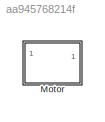
MODEL slx_aa945768214f
KIND library
CONFIG SolverName = VariableStepAuto
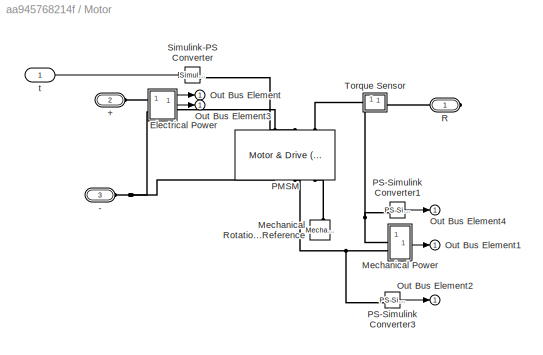
BLOCK [SubSystem] Motor
BLOCK [PMIOPort] Motor/+
  Port = 2
  Side = Left
BLOCK [PMIOPort] Motor/-
  Port = 3
  Side = Left
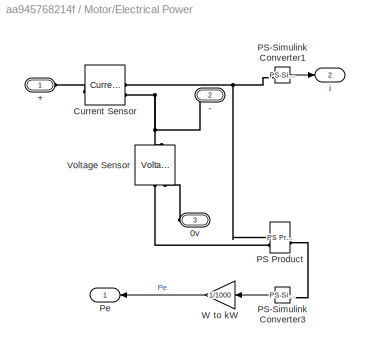
BLOCK [SubSystem] Motor/Electrical Power
BLOCK [Gain] Motor/Electrical Power/ W to kW 
  Gain = 1/1000
BLOCK [PMIOPort] Motor/Electrical Power/+
  Side = Left
BLOCK [PMIOPort] Motor/Electrical Power/-
  Port = 2
  Side = Right
BLOCK [PMIOPort] Motor/Electrical Power/0v
  Port = 3
  Side = Left
BLOCK [Reference] Motor/Electrical Power/Current Sensor  REF=fl_lib/Electrical/Electrical Sensors/Current Sensor
  SourceBlock = fl_lib/Electrical/Electrical Sensors/Current Sensor
  SourceType = Current Sensor
BLOCK [Reference] Motor/Electrical Power/PS Product  REF=fl_lib/Physical Signals/Functions/PS Product
  SourceBlock = fl_lib/Physical Signals/Functions/PS Product
  SourceType = PS Product
BLOCK [Reference] Motor/Electrical Power/PS-Simulink Converter1  REF=nesl_utility/PS-Simulink
Converter
  NameLocation = top
  SourceBlock = nesl_utility/PS-Simulink\nConverter
  SourceType = PS-Simulink\nConverter
BLOCK [Reference] Motor/Electrical Power/PS-Simulink Converter3  REF=nesl_utility/PS-Simulink
Converter
  NameLocation = top
  SourceBlock = nesl_utility/PS-Simulink\nConverter
  SourceType = PS-Simulink\nConverter
BLOCK [Outport] Motor/Electrical Power/Pe
BLOCK [Reference] Motor/Electrical Power/Voltage Sensor  REF=fl_lib/Electrical/Electrical Sensors/Voltage Sensor
  NameLocation = right
  SourceBlock = fl_lib/Electrical/Electrical Sensors/Voltage Sensor
  SourceType = Voltage Sensor
BLOCK [Outport] Motor/Electrical Power/i
  Port = 2
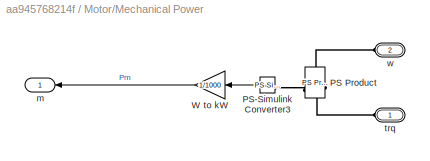
BLOCK [SubSystem] Motor/Mechanical Power
BLOCK [Gain] Motor/Mechanical Power/ W to kW 
  Gain = 1/1000
BLOCK [Reference] Motor/Mechanical Power/PS Product  REF=fl_lib/Physical Signals/Functions/PS Product
  SourceBlock = fl_lib/Physical Signals/Functions/PS Product
  SourceType = PS Product
BLOCK [Reference] Motor/Mechanical Power/PS-Simulink Converter3  REF=nesl_utility/PS-Simulink
Converter
  NameLocation = top
  SourceBlock = nesl_utility/PS-Simulink\nConverter
  SourceType = PS-Simulink\nConverter
BLOCK [Outport] Motor/Mechanical Power/m
  NameLocation = top
BLOCK [PMIOPort] Motor/Mechanical Power/trq
  Side = Left
BLOCK [PMIOPort] Motor/Mechanical Power/w
  Port = 2
  Side = Left
BLOCK [Reference] Motor/Mechanical Rotational Reference  REF=fl_lib/Mechanical/Rotational Elements/Mechanical
Rotational Reference
  NameLocation = right
  SourceBlock = fl_lib/Mechanical/Rotational Elements/Mechanical\nRotational Reference
  SourceType = Mechanical\nRotational Reference
BLOCK [Outport] Motor/Out Bus Element
BLOCK [Outport] Motor/Out Bus Element1
BLOCK [Outport] Motor/Out Bus Element2
BLOCK [Outport] Motor/Out Bus Element3
BLOCK [Outport] Motor/Out Bus Element4
BLOCK [Reference] Motor/PMSM  REF=ee_lib/Electromechanical/Motor & Drive
(System Level)
  NameLocation = left
  SourceBlock = ee_lib/Electromechanical/Motor & Drive\n(System Level)
  SourceType = Motor & Drive\n(System Level)
BLOCK [Reference] Motor/PS-Simulink Converter1  REF=nesl_utility/PS-Simulink
Converter
  NameLocation = top
  SourceBlock = nesl_utility/PS-Simulink\nConverter
  SourceType = PS-Simulink\nConverter
BLOCK [Reference] Motor/PS-Simulink Converter3  REF=nesl_utility/PS-Simulink
Converter
  NameLocation = top
  SourceBlock = nesl_utility/PS-Simulink\nConverter
  SourceType = PS-Simulink\nConverter
BLOCK [PMIOPort] Motor/R
  Side = Right
BLOCK [Reference] Motor/Simulink-PS Converter  REF=nesl_utility/Simulink-PS
Converter
  SourceBlock = nesl_utility/Simulink-PS\nConverter
  SourceType = Simulink-PS\nConverter
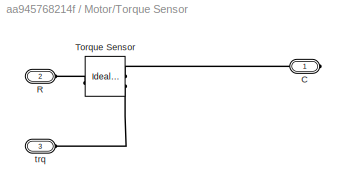
BLOCK [SubSystem] Motor/Torque Sensor
BLOCK [PMIOPort] Motor/Torque Sensor/C
  Side = Right
BLOCK [PMIOPort] Motor/Torque Sensor/R
  Port = 2
  Side = Left
BLOCK [Reference] Motor/Torque Sensor/Torque Sensor  REF=fl_lib/Mechanical/Mechanical Sensors/Ideal Torque Sensor
  SourceBlock = fl_lib/Mechanical/Mechanical Sensors/Ideal Torque Sensor
  SourceType = Ideal Torque Sensor
BLOCK [PMIOPort] Motor/Torque Sensor/trq
  Port = 3
  Side = Left
BLOCK [Inport] Motor/t
LINE Motor/Electrical Power/ W to kW :1 -> Motor/Electrical Power/Pe:1
LINE Motor/Electrical Power/PS-Simulink Converter1:1 -> Motor/Electrical Power/i:1
LINE Motor/Electrical Power/PS-Simulink Converter3:1 -> Motor/Electrical Power/ W to kW :1
LINE Motor/Electrical Power:1 -> Motor/Out Bus Element:1
LINE Motor/Electrical Power:2 -> Motor/Out Bus Element3:1
LINE Motor/Mechanical Power/ W to kW :1 -> Motor/Mechanical Power/m:1
LINE Motor/Mechanical Power/PS-Simulink Converter3:1 -> Motor/Mechanical Power/ W to kW :1
LINE Motor/Mechanical Power:1 -> Motor/Out Bus Element1:1
LINE Motor/PS-Simulink Converter1:1 -> Motor/Out Bus Element4:1
LINE Motor/PS-Simulink Converter3:1 -> Motor/Out Bus Element2:1
LINE Motor/t:1 -> Motor/Simulink-PS Converter:1
PLINE Motor/+:RConn1 -- Motor/Electrical Power:LConn1
PNET net1: Motor/-:RConn1 -- Motor/Electrical Power:LConn2 -- Motor/PMSM:RConn1
PLINE Motor/Electrical Power/+:RConn1 -- Motor/Electrical Power/Current Sensor:LConn1
PNET net2: Motor/Electrical Power/-:RConn1 -- Motor/Electrical Power/Current Sensor:RConn2 -- Motor/Electrical Power/Voltage Sensor:LConn1
PLINE Motor/Electrical Power/0v:RConn1 -- Motor/Electrical Power/Voltage Sensor:RConn2
PNET net3: Motor/Electrical Power/Current Sensor:RConn1 -- Motor/Electrical Power/PS Product:LConn1 -- Motor/Electrical Power/PS-Simulink Converter1:LConn1
PLINE Motor/Electrical Power/PS Product:LConn2 -- Motor/Electrical Power/Voltage Sensor:RConn1
PLINE Motor/Electrical Power/PS Product:RConn1 -- Motor/Electrical Power/PS-Simulink Converter3:LConn1
PLINE Motor/Electrical Power:RConn1 -- Motor/PMSM:LConn1
PLINE Motor/Mechanical Power/PS Product:LConn1 -- Motor/Mechanical Power/trq:RConn1
PLINE Motor/Mechanical Power/PS Product:LConn2 -- Motor/Mechanical Power/w:RConn1
PLINE Motor/Mechanical Power/PS Product:RConn1 -- Motor/Mechanical Power/PS-Simulink Converter3:LConn1
PNET net4: Motor/Mechanical Power:LConn1 -- Motor/PS-Simulink Converter1:LConn1 -- Motor/Torque Sensor:LConn2
PNET net5: Motor/Mechanical Power:LConn2 -- Motor/PMSM:RConn2 -- Motor/PS-Simulink Converter3:LConn1
PLINE Motor/Mechanical Rotational Reference:LConn1 -- Motor/PMSM:RConn3
PLINE Motor/PMSM:LConn2 -- Motor/Simulink-PS Converter:RConn1
PLINE Motor/PMSM:LConn3 -- Motor/Torque Sensor:LConn1
PLINE Motor/R:RConn1 -- Motor/Torque Sensor:RConn1
PLINE Motor/Torque Sensor/C:RConn1 -- Motor/Torque Sensor/Torque Sensor:RConn1
PLINE Motor/Torque Sensor/R:RConn1 -- Motor/Torque Sensor/Torque Sensor:LConn1
PLINE Motor/Torque Sensor/Torque Sensor:RConn2 -- Motor/Torque Sensor/trq:RConn1
note: PNET lines group multi-terminal physical nets as a canonical sorted terminal list (undirected conserving connections); 2-terminal nets keep the pairwise PLINE form
